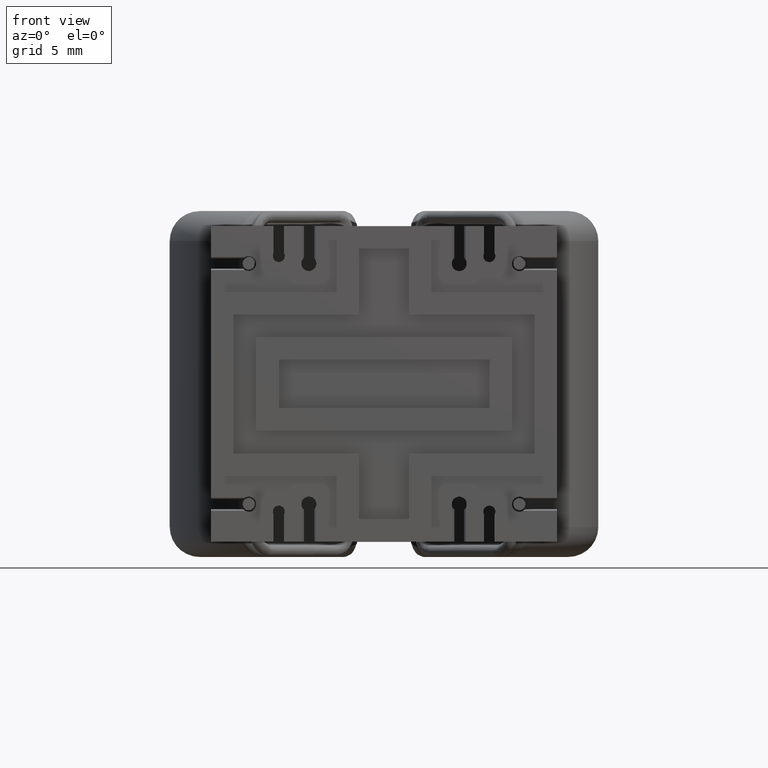
[diagram: clean part render]
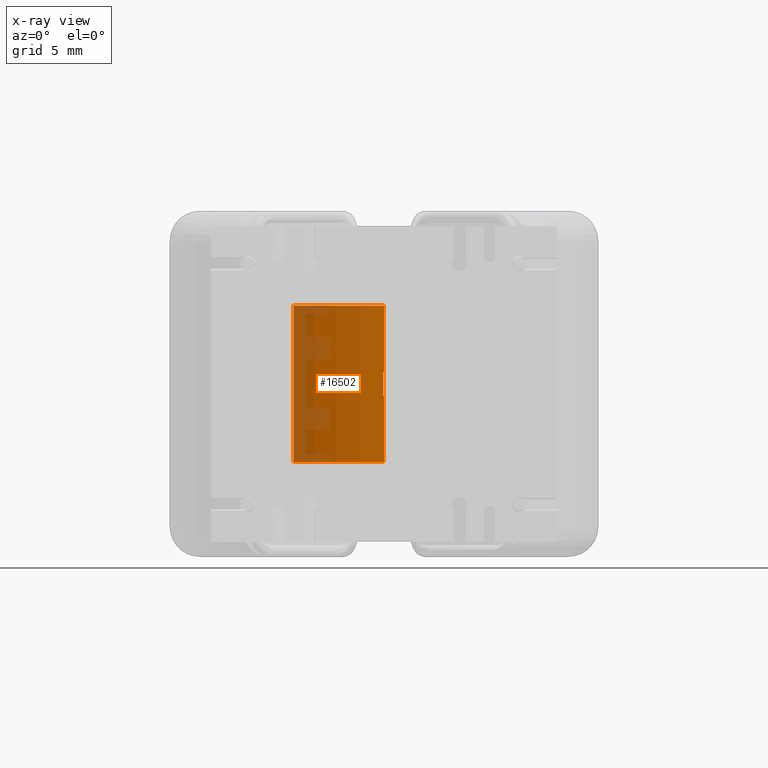
[diagram: x-ray — body ghosted, one internal face saturated and labeled with its STEP entity id]
A machine part, front view, then the same camera in x-ray: the body is ghosted and one INTERNAL B-rep face — a face not visible from any outside direction — is saturated and labeled: STEP entity #16502.
In plain terms, the highlighted cylindrical surface (partial cylindrical patch) has radius 10 mm, axis along (0, -0, -1).
Its self-contained STEP definition (entity closure, byte-faithful):
#499 = VERTEX_POINT ( 'NONE', #663 ) ;
#663 = CARTESIAN_POINT ( 'NONE',  ( 2.849049046335415781E-16, -10.00000000000000000, -5.199999999999999289 ) ) ;
#1527 = CYLINDRICAL_SURFACE ( 'NONE', #7219, 10.00000000000000000 ) ;
#2646 = CARTESIAN_POINT ( 'NONE',  ( 0.0000000000000000000, 0.0000000000000000000, 0.8000000000000000444 ) ) ;
#3432 = VECTOR ( 'NONE', #19251, 1000.000000000000000 ) ;
#3790 = VERTEX_POINT ( 'NONE', #17812 ) ;
#3949 = DIRECTION ( 'NONE',  ( 9.186435596565498304E-18, -1.848892746611746419E-32, -1.000000000000000000 ) ) ;
#4347 = CARTESIAN_POINT ( 'NONE',  ( -6.006594590494425567, -7.995049807564873490, -0.8000000000000000444 ) ) ;
#4514 = DIRECTION ( 'NONE',  ( -0.0000000000000000000, -0.0000000000000000000, -1.000000000000000000 ) ) ;
#4629 = DIRECTION ( 'NONE',  ( 1.776356839400250465E-15, 1.000000000000000000, 0.0000000000000000000 ) ) ;
#4656 = VERTEX_POINT ( 'NONE', #10382 ) ;
#4693 = LINE ( 'NONE', #4347, #13551 ) ;
#4811 = EDGE_CURVE ( 'NONE', #22939, #499, #15227, .T. ) ;
#4969 = VERTEX_POINT ( 'NONE', #17603 ) ;
#5375 = EDGE_CURVE ( 'NONE', #4656, #17442, #4693, .T. ) ;
#5507 = AXIS2_PLACEMENT_3D ( 'NONE', #2646, #17278, #17366 ) ;
#5881 = CARTESIAN_POINT ( 'NONE',  ( 2.775557561562891351E-16, -10.00000000000000000, 0.8000000000000002665 ) ) ;
#6092 = LINE ( 'NONE', #5881, #8714 ) ;
#6480 = CARTESIAN_POINT ( 'NONE',  ( 0.0000000000000000000, 0.0000000000000000000, 5.200000000000000178 ) ) ;
#6627 = CIRCLE ( 'NONE', #15038, 10.00000000000000000 ) ;
#6829 = ORIENTED_EDGE ( 'NONE', *, *, #9836, .T. ) ;
#7219 = AXIS2_PLACEMENT_3D ( 'NONE', #19262, #10916, #25638 ) ;
#7573 = AXIS2_PLACEMENT_3D ( 'NONE', #17305, #21379, #13261 ) ;
#7661 = CARTESIAN_POINT ( 'NONE',  ( 1.469829695450479667E-17, -4.028064419361689712E-17, -0.7999999999999996003 ) ) ;
#8597 = CIRCLE ( 'NONE', #9233, 10.00000000000000000 ) ;
#8714 = VECTOR ( 'NONE', #20412, 1000.000000000000000 ) ;
#9233 = AXIS2_PLACEMENT_3D ( 'NONE', #6480, #21189, #4629 ) ;
#9378 = FACE_OUTER_BOUND ( 'NONE', #25740, .T. ) ;
#9836 = EDGE_CURVE ( 'NONE', #20408, #4969, #17240, .T. ) ;
#10382 = CARTESIAN_POINT ( 'NONE',  ( -6.006594590494425567, -7.995049807564873490, 5.200000000000000178 ) ) ;
#10582 = LINE ( 'NONE', #12441, #12525 ) ;
#10916 = DIRECTION ( 'NONE',  ( 9.186435596565498304E-18, -1.848892746611746419E-32, -1.000000000000000000 ) ) ;
#10994 = EDGE_CURVE ( 'NONE', #499, #17442, #14519, .T. ) ;
#12441 = CARTESIAN_POINT ( 'NONE',  ( -0.04999999999999824724, -9.999874999218739902, 0.8000000000000002665 ) ) ;
#12495 = ORIENTED_EDGE ( 'NONE', *, *, #14150, .T. ) ;
#12525 = VECTOR ( 'NONE', #3949, 1000.000000000000000 ) ;
#12729 = CARTESIAN_POINT ( 'NONE',  ( 2.775557561562891351E-16, -10.00000000000000000, 0.8000000000000002665 ) ) ;
#12894 = ORIENTED_EDGE ( 'NONE', *, *, #5375, .F. ) ;
#13261 = DIRECTION ( 'NONE',  ( -2.775557561562891351E-17, 1.000000000000000000, 0.0000000000000000000 ) ) ;
#13551 = VECTOR ( 'NONE', #4514, 1000.000000000000000 ) ;
#14150 = EDGE_CURVE ( 'NONE', #3790, #22939, #6627, .T. ) ;
#14519 = CIRCLE ( 'NONE', #7573, 10.00000000000000000 ) ;
#14639 = EDGE_CURVE ( 'NONE', #4969, #3790, #10582, .T. ) ;
#15038 = AXIS2_PLACEMENT_3D ( 'NONE', #7661, #15904, #24487 ) ;
#15227 = LINE ( 'NONE', #12729, #3432 ) ;
#15904 = DIRECTION ( 'NONE',  ( -9.186435596565499845E-18, 1.848892746611746966E-32, 1.000000000000000000 ) ) ;
#16502 = ADVANCED_FACE ( 'NONE', ( #9378 ), #1527, .F. ) ;
#16530 = CARTESIAN_POINT ( 'NONE',  ( -6.006594590494427344, -7.995049807564873490, -5.199999999999999289 ) ) ;
#17240 = CIRCLE ( 'NONE', #5507, 10.00000000000000000 ) ;
#17278 = DIRECTION ( 'NONE',  ( 0.0000000000000000000, 0.0000000000000000000, -1.000000000000000000 ) ) ;
#17305 = CARTESIAN_POINT ( 'NONE',  ( 5.511861357939298982E-17, -4.028064419361697724E-17, -5.199999999999999289 ) ) ;
#17332 = EDGE_CURVE ( 'NONE', #19531, #20408, #6092, .T. ) ;
#17366 = DIRECTION ( 'NONE',  ( 0.0000000000000000000, 1.000000000000000000, 0.0000000000000000000 ) ) ;
#17442 = VERTEX_POINT ( 'NONE', #16530 ) ;
#17603 = CARTESIAN_POINT ( 'NONE',  ( -0.04999999999999823336, -9.999874999218739902, 0.8000000000000000444 ) ) ;
#17812 = CARTESIAN_POINT ( 'NONE',  ( -0.04999999999999823336, -9.999874999218741678, -0.7999999999999996003 ) ) ;
#19251 = DIRECTION ( 'NONE',  ( 9.186435596565498304E-18, -1.848892746611746419E-32, -1.000000000000000000 ) ) ;
#19262 = CARTESIAN_POINT ( 'NONE',  ( 0.0000000000000000000, -4.028064419361686631E-17, 0.8000000000000002665 ) ) ;
#19531 = VERTEX_POINT ( 'NONE', #20549 ) ;
#19921 = ORIENTED_EDGE ( 'NONE', *, *, #10994, .T. ) ;
#20155 = ORIENTED_EDGE ( 'NONE', *, *, #14639, .T. ) ;
#20408 = VERTEX_POINT ( 'NONE', #22782 ) ;
#20412 = DIRECTION ( 'NONE',  ( 9.186435596565498304E-18, -1.848892746611746419E-32, -1.000000000000000000 ) ) ;
#20549 = CARTESIAN_POINT ( 'NONE',  ( 2.849049046335415781E-16, -10.00000000000000000, 5.200000000000000178 ) ) ;
#20866 = ORIENTED_EDGE ( 'NONE', *, *, #4811, .T. ) ;
#21009 = EDGE_CURVE ( 'NONE', #4656, #19531, #8597, .T. ) ;
#21189 = DIRECTION ( 'NONE',  ( -0.0000000000000000000, -0.0000000000000000000, 1.000000000000000000 ) ) ;
#21379 = DIRECTION ( 'NONE',  ( 9.186435596565499845E-18, -1.848892746611746966E-32, -1.000000000000000000 ) ) ;
#22119 = ORIENTED_EDGE ( 'NONE', *, *, #17332, .T. ) ;
#22782 = CARTESIAN_POINT ( 'NONE',  ( 2.849049046335415781E-16, -10.00000000000000000, 0.8000000000000000444 ) ) ;
#22939 = VERTEX_POINT ( 'NONE', #25393 ) ;
#23454 = ORIENTED_EDGE ( 'NONE', *, *, #21009, .T. ) ;
#24487 = DIRECTION ( 'NONE',  ( -2.775557561562891351E-17, 1.000000000000000000, 0.0000000000000000000 ) ) ;
#25393 = CARTESIAN_POINT ( 'NONE',  ( 2.849049046335415781E-16, -10.00000000000000000, -0.7999999999999996003 ) ) ;
#25638 = DIRECTION ( 'NONE',  ( 2.775557561562891351E-17, -1.000000000000000000, 0.0000000000000000000 ) ) ;
#25740 = EDGE_LOOP ( 'NONE', ( #23454, #22119, #6829, #20155, #12495, #20866, #19921, #12894 ) ) ;